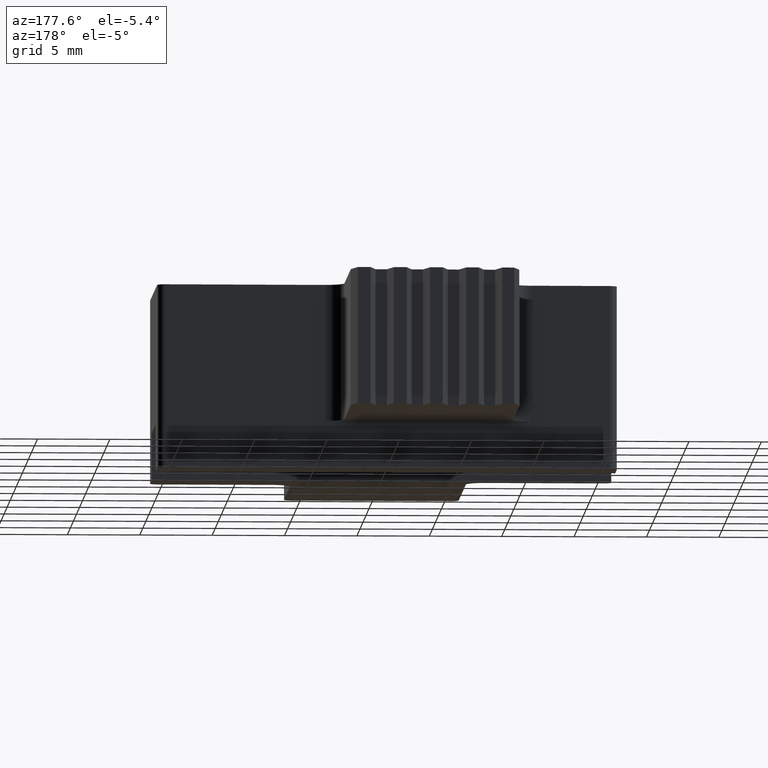
[diagram: clean part render]
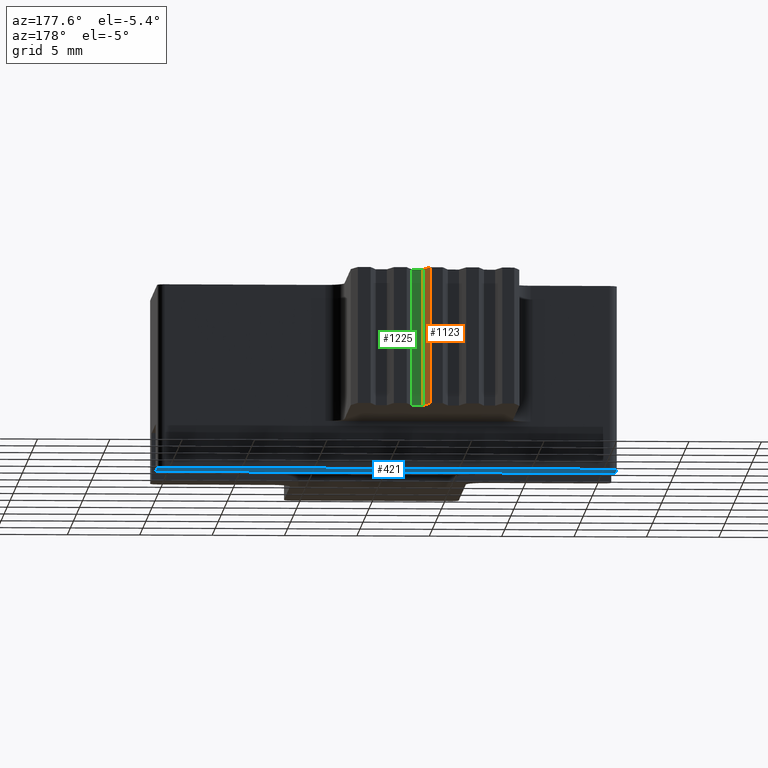
[diagram: same view with three faces highlighted in distinct colors, each labeled with its STEP entity id]
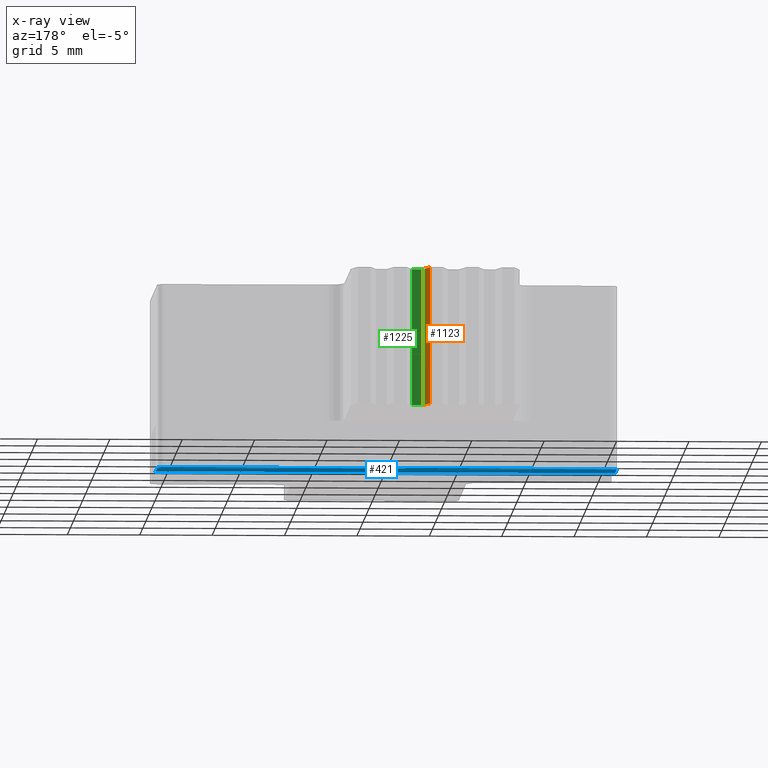
[diagram: x-ray of the same camera — body ghosted, the three highlighted faces saturated]
A machine part, auxiliary view with three faces highlighted in distinct colors.
The next image is the same camera in x-ray (body ghosted, the three faces saturated) — at least one of them is partly hidden behind the body in this view.
Their STEP definitions:

[orange] entity #1123 — the highlighted planar face has unit normal (0.9681, 0.2504, 0).
#4 = EDGE_CURVE ( 'NONE', #1402, #1430, #118, .T. ) ;
#34 = AXIS2_PLACEMENT_3D ( 'NONE', #245, #1771, #1088 ) ;
#50 = DIRECTION ( 'NONE',  ( 0.2503800040544775229, -0.9681476403780984175, 0.000000000000000000 ) ) ;
#66 = ORIENTED_EDGE ( 'NONE', *, *, #735, .F. ) ;
#97 = FACE_OUTER_BOUND ( 'NONE', #1652, .T. ) ;
#118 = LINE ( 'NONE', #366, #1470 ) ;
#217 = LINE ( 'NONE', #784, #1119 ) ;
#245 = CARTESIAN_POINT ( 'NONE',  ( 0.2851736653987755887, 0.1880000000000000282, 0.3119999999999999996 ) ) ;
#333 = VERTEX_POINT ( 'NONE', #1073 ) ;
#346 = EDGE_CURVE ( 'NONE', #689, #1402, #217, .T. ) ;
#366 = CARTESIAN_POINT ( 'NONE',  ( 0.3017251907975551095, 0.1240000000000000130, 0.3119999999999999996 ) ) ;
#373 = VECTOR ( 'NONE', #776, 39.37007874015748143 ) ;
#390 = DIRECTION ( 'NONE',  ( 0.2503800040544775229, -0.9681476403780984175, 0.000000000000000000 ) ) ;
#461 = EDGE_CURVE ( 'NONE', #333, #1430, #1794, .T. ) ;
#683 = DIRECTION ( 'NONE',  ( 0.000000000000000000, 0.000000000000000000, -1.000000000000000000 ) ) ;
#689 = VERTEX_POINT ( 'NONE', #1740 ) ;
#735 = EDGE_CURVE ( 'NONE', #689, #333, #1319, .T. ) ;
#776 = DIRECTION ( 'NONE',  ( 0.000000000000000000, 0.000000000000000000, -1.000000000000000000 ) ) ;
#784 = CARTESIAN_POINT ( 'NONE',  ( 0.2851736653987755887, 0.1880000000000000282, 0.3119999999999999996 ) ) ;
#874 = ORIENTED_EDGE ( 'NONE', *, *, #461, .F. ) ;
#980 = CARTESIAN_POINT ( 'NONE',  ( 0.3017251907975551095, 0.1240000000000000130, 0.3119999999999999996 ) ) ;
#1060 = CARTESIAN_POINT ( 'NONE',  ( 0.2851736653987755887, 0.1880000000000000282, 0.3119999999999999996 ) ) ;
#1073 = CARTESIAN_POINT ( 'NONE',  ( 0.2851736653987755887, 0.1880000000000000282, -0.05899999999999996914 ) ) ;
#1088 = DIRECTION ( 'NONE',  ( -0.2503800040544775229, 0.9681476403780984175, 0.000000000000000000 ) ) ;
#1106 = CARTESIAN_POINT ( 'NONE',  ( 0.2851736653987755887, 0.1880000000000000282, -0.05899999999999996914 ) ) ;
#1119 = VECTOR ( 'NONE', #50, 39.37007874015748143 ) ;
#1123 = ADVANCED_FACE ( 'NONE', ( #97 ), #1792, .T. ) ;
#1208 = VECTOR ( 'NONE', #390, 39.37007874015748143 ) ;
#1319 = LINE ( 'NONE', #1060, #373 ) ;
#1402 = VERTEX_POINT ( 'NONE', #980 ) ;
#1409 = CARTESIAN_POINT ( 'NONE',  ( 0.3017251907975551095, 0.1239999999999999991, -0.05899999999999996914 ) ) ;
#1430 = VERTEX_POINT ( 'NONE', #1409 ) ;
#1470 = VECTOR ( 'NONE', #683, 39.37007874015748143 ) ;
#1525 = ORIENTED_EDGE ( 'NONE', *, *, #4, .T. ) ;
#1652 = EDGE_LOOP ( 'NONE', ( #874, #66, #1718, #1525 ) ) ;
#1718 = ORIENTED_EDGE ( 'NONE', *, *, #346, .T. ) ;
#1740 = CARTESIAN_POINT ( 'NONE',  ( 0.2851736653987755887, 0.1880000000000000282, 0.3119999999999999996 ) ) ;
#1771 = DIRECTION ( 'NONE',  ( 0.9681476403780984175, 0.2503800040544775229, 0.000000000000000000 ) ) ;
#1792 = PLANE ( 'NONE',  #34 ) ;
#1794 = LINE ( 'NONE', #1106, #1208 ) ;

[blue] entity #421 — the highlighted planar face has unit normal (0, 0, -1).
#59 = ORIENTED_EDGE ( 'NONE', *, *, #1686, .T. ) ;
#70 = LINE ( 'NONE', #594, #823 ) ;
#228 = VECTOR ( 'NONE', #1122, 39.37007874015748143 ) ;
#321 = CIRCLE ( 'NONE', #404, 0.01999999999999999001 ) ;
#337 = CARTESIAN_POINT ( 'NONE',  ( -0.2452632600000000940, -0.4509999999999999565, -0.1880000000000000282 ) ) ;
#384 = DIRECTION ( 'NONE',  ( 0.000000000000000000, 0.000000000000000000, -1.000000000000000000 ) ) ;
#404 = AXIS2_PLACEMENT_3D ( 'NONE', #1346, #1754, #486 ) ;
#421 = ADVANCED_FACE ( 'NONE', ( #1113 ), #1629, .T. ) ;
#474 = LINE ( 'NONE', #516, #1819 ) ;
#477 = VERTEX_POINT ( 'NONE', #1382 ) ;
#486 = DIRECTION ( 'NONE',  ( -1.000000000000000000, 0.000000000000000000, 0.000000000000000000 ) ) ;
#516 = CARTESIAN_POINT ( 'NONE',  ( 1.004736740000000017, -0.3339999999999998526, -0.1880000000000000282 ) ) ;
#555 = EDGE_CURVE ( 'NONE', #1593, #1441, #1427, .T. ) ;
#569 = EDGE_LOOP ( 'NONE', ( #1226, #1521, #1191, #59, #979, #969 ) ) ;
#594 = CARTESIAN_POINT ( 'NONE',  ( -0.2452632600000000385, -0.3339999999999997971, -0.1880000000000000282 ) ) ;
#773 = CARTESIAN_POINT ( 'NONE',  ( 0.9847367399999999993, -0.3539999999999997593, -0.1880000000000000282 ) ) ;
#823 = VECTOR ( 'NONE', #1054, 39.37007874015748143 ) ;
#873 = CARTESIAN_POINT ( 'NONE',  ( 0.9847367399999999993, -0.3339999999999997971, -0.1880000000000000282 ) ) ;
#923 = CARTESIAN_POINT ( 'NONE',  ( -0.2252632600000000485, -0.3339999999999997971, -0.1880000000000000282 ) ) ;
#941 = EDGE_CURVE ( 'NONE', #1000, #1464, #70, .T. ) ;
#963 = CARTESIAN_POINT ( 'NONE',  ( 0.5047367400000000170, -0.4509999999999999010, -0.1880000000000000282 ) ) ;
#969 = ORIENTED_EDGE ( 'NONE', *, *, #1091, .T. ) ;
#979 = ORIENTED_EDGE ( 'NONE', *, *, #1745, .T. ) ;
#1000 = VERTEX_POINT ( 'NONE', #337 ) ;
#1054 = DIRECTION ( 'NONE',  ( 8.328804858732509752E-17, 1.000000000000000000, -0.000000000000000000 ) ) ;
#1091 = EDGE_CURVE ( 'NONE', #477, #1000, #1372, .T. ) ;
#1113 = FACE_OUTER_BOUND ( 'NONE', #569, .T. ) ;
#1122 = DIRECTION ( 'NONE',  ( 1.000000000000000000, -0.000000000000000000, -0.000000000000000000 ) ) ;
#1151 = CARTESIAN_POINT ( 'NONE',  ( 0.03973673999999994405, -0.3339999999999997971, -0.1880000000000000282 ) ) ;
#1160 = VECTOR ( 'NONE', #1216, 39.37007874015748143 ) ;
#1184 = CIRCLE ( 'NONE', #1439, 0.02000000000000005940 ) ;
#1191 = ORIENTED_EDGE ( 'NONE', *, *, #555, .T. ) ;
#1202 = DIRECTION ( 'NONE',  ( -0.000000000000000000, 0.000000000000000000, -1.000000000000000000 ) ) ;
#1216 = DIRECTION ( 'NONE',  ( -1.000000000000000000, -0.000000000000000000, -0.000000000000000000 ) ) ;
#1226 = ORIENTED_EDGE ( 'NONE', *, *, #941, .T. ) ;
#1231 = DIRECTION ( 'NONE',  ( -2.787599993534962609E-16, -1.000000000000000000, 0.000000000000000000 ) ) ;
#1305 = VERTEX_POINT ( 'NONE', #1613 ) ;
#1308 = EDGE_CURVE ( 'NONE', #1464, #1593, #321, .T. ) ;
#1346 = CARTESIAN_POINT ( 'NONE',  ( -0.2252632600000000485, -0.3539999999999997593, -0.1880000000000000282 ) ) ;
#1372 = LINE ( 'NONE', #963, #1160 ) ;
#1382 = CARTESIAN_POINT ( 'NONE',  ( 1.004736740000000017, -0.4509999999999999565, -0.1880000000000000282 ) ) ;
#1427 = LINE ( 'NONE', #1151, #228 ) ;
#1439 = AXIS2_PLACEMENT_3D ( 'NONE', #773, #1202, #1738 ) ;
#1441 = VERTEX_POINT ( 'NONE', #873 ) ;
#1464 = VERTEX_POINT ( 'NONE', #1708 ) ;
#1521 = ORIENTED_EDGE ( 'NONE', *, *, #1308, .T. ) ;
#1522 = AXIS2_PLACEMENT_3D ( 'NONE', #1776, #384, #1803 ) ;
#1593 = VERTEX_POINT ( 'NONE', #923 ) ;
#1613 = CARTESIAN_POINT ( 'NONE',  ( 1.004736740000000017, -0.3539999999999997593, -0.1880000000000000282 ) ) ;
#1629 = PLANE ( 'NONE',  #1522 ) ;
#1686 = EDGE_CURVE ( 'NONE', #1441, #1305, #1184, .T. ) ;
#1708 = CARTESIAN_POINT ( 'NONE',  ( -0.2452632600000000385, -0.3539999999999997593, -0.1880000000000000282 ) ) ;
#1738 = DIRECTION ( 'NONE',  ( -1.000000000000000000, 0.000000000000000000, 0.000000000000000000 ) ) ;
#1745 = EDGE_CURVE ( 'NONE', #1305, #477, #474, .T. ) ;
#1754 = DIRECTION ( 'NONE',  ( -0.000000000000000000, 0.000000000000000000, -1.000000000000000000 ) ) ;
#1776 = CARTESIAN_POINT ( 'NONE',  ( 0.03973673999999994405, -0.3339999999999997971, -0.1880000000000000282 ) ) ;
#1803 = DIRECTION ( 'NONE',  ( -1.000000000000000000, 0.000000000000000000, 0.000000000000000000 ) ) ;
#1819 = VECTOR ( 'NONE', #1231, 39.37007874015748143 ) ;

[green] entity #1225 — the highlighted planar face has unit normal (-0, 1, 0).
#4 = EDGE_CURVE ( 'NONE', #1402, #1430, #118, .T. ) ;
#110 = ORIENTED_EDGE ( 'NONE', *, *, #242, .T. ) ;
#118 = LINE ( 'NONE', #366, #1470 ) ;
#135 = ORIENTED_EDGE ( 'NONE', *, *, #1209, .F. ) ;
#206 = EDGE_LOOP ( 'NONE', ( #135, #1315, #110, #899 ) ) ;
#242 = EDGE_CURVE ( 'NONE', #1402, #957, #1046, .T. ) ;
#291 = CARTESIAN_POINT ( 'NONE',  ( 0.3321112907975551365, 0.1240000000000000130, 0.3119999999999999996 ) ) ;
#358 = CARTESIAN_POINT ( 'NONE',  ( 0.3017251907975551095, 0.1240000000000000130, 0.3119999999999999996 ) ) ;
#366 = CARTESIAN_POINT ( 'NONE',  ( 0.3017251907975551095, 0.1240000000000000130, 0.3119999999999999996 ) ) ;
#413 = CARTESIAN_POINT ( 'NONE',  ( 0.3321112907975551365, 0.1240000000000000130, -0.05899999999999996914 ) ) ;
#417 = LINE ( 'NONE', #291, #1004 ) ;
#495 = VECTOR ( 'NONE', #1196, 39.37007874015748143 ) ;
#503 = CARTESIAN_POINT ( 'NONE',  ( 0.3017251907975551095, 0.1240000000000000130, -0.05899999999999996914 ) ) ;
#574 = VECTOR ( 'NONE', #898, 39.37007874015748143 ) ;
#598 = EDGE_CURVE ( 'NONE', #957, #1424, #417, .T. ) ;
#683 = DIRECTION ( 'NONE',  ( 0.000000000000000000, 0.000000000000000000, -1.000000000000000000 ) ) ;
#719 = DIRECTION ( 'NONE',  ( 0.000000000000000000, 0.000000000000000000, -1.000000000000000000 ) ) ;
#775 = PLANE ( 'NONE',  #858 ) ;
#858 = AXIS2_PLACEMENT_3D ( 'NONE', #1212, #1620, #1768 ) ;
#897 = CARTESIAN_POINT ( 'NONE',  ( 0.3321112907975551365, 0.1240000000000000130, 0.3119999999999999996 ) ) ;
#898 = DIRECTION ( 'NONE',  ( 1.000000000000000000, 0.000000000000000000, 0.000000000000000000 ) ) ;
#899 = ORIENTED_EDGE ( 'NONE', *, *, #598, .T. ) ;
#957 = VERTEX_POINT ( 'NONE', #897 ) ;
#980 = CARTESIAN_POINT ( 'NONE',  ( 0.3017251907975551095, 0.1240000000000000130, 0.3119999999999999996 ) ) ;
#1004 = VECTOR ( 'NONE', #719, 39.37007874015748143 ) ;
#1046 = LINE ( 'NONE', #358, #574 ) ;
#1196 = DIRECTION ( 'NONE',  ( 1.000000000000000000, 0.000000000000000000, 0.000000000000000000 ) ) ;
#1209 = EDGE_CURVE ( 'NONE', #1430, #1424, #1626, .T. ) ;
#1212 = CARTESIAN_POINT ( 'NONE',  ( 0.3017251907975551095, 0.1240000000000000130, 0.3119999999999999996 ) ) ;
#1225 = ADVANCED_FACE ( 'NONE', ( #1502 ), #775, .T. ) ;
#1315 = ORIENTED_EDGE ( 'NONE', *, *, #4, .F. ) ;
#1402 = VERTEX_POINT ( 'NONE', #980 ) ;
#1409 = CARTESIAN_POINT ( 'NONE',  ( 0.3017251907975551095, 0.1239999999999999991, -0.05899999999999996914 ) ) ;
#1424 = VERTEX_POINT ( 'NONE', #413 ) ;
#1430 = VERTEX_POINT ( 'NONE', #1409 ) ;
#1470 = VECTOR ( 'NONE', #683, 39.37007874015748143 ) ;
#1502 = FACE_OUTER_BOUND ( 'NONE', #206, .T. ) ;
#1620 = DIRECTION ( 'NONE',  ( -0.000000000000000000, 1.000000000000000000, 0.000000000000000000 ) ) ;
#1626 = LINE ( 'NONE', #503, #495 ) ;
#1768 = DIRECTION ( 'NONE',  ( 0.000000000000000000, -0.000000000000000000, 1.000000000000000000 ) ) ;